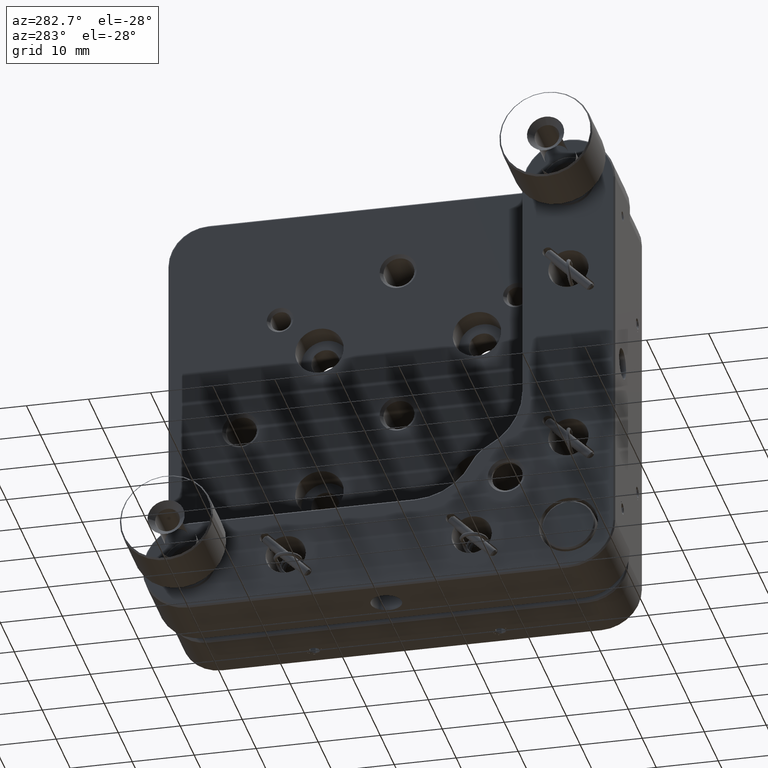
[diagram: clean part render]
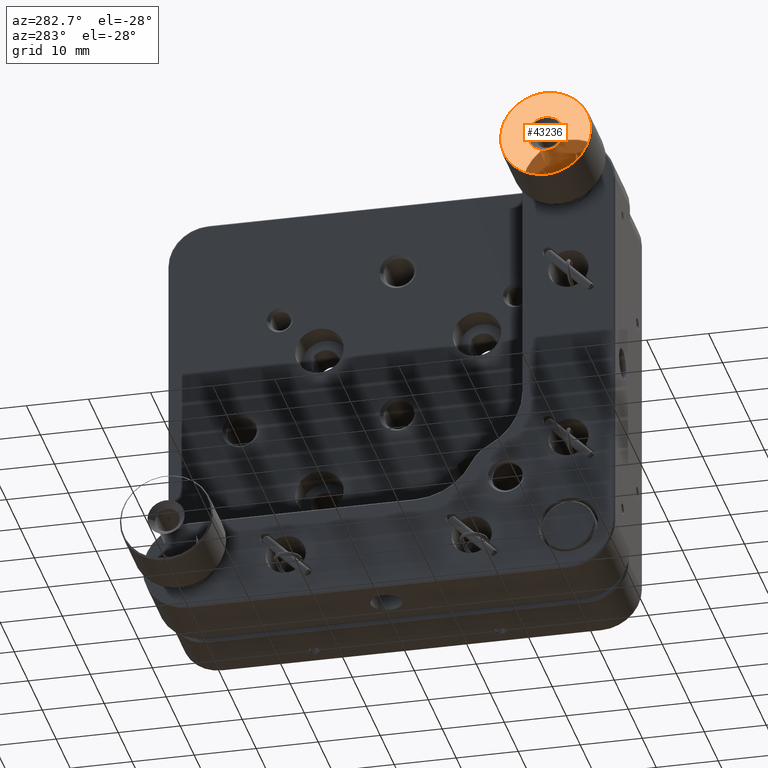
[diagram: same view with one face highlighted and labeled with its STEP entity id]
A machine part, auxiliary view. The second image highlights one B-rep face of the part: STEP entity #43236.
In plain terms, the highlighted planar face has unit normal (1, 0, 0).
Its self-contained STEP definition (entity closure, byte-faithful):
#512 = VERTEX_POINT ( 'NONE', #29912 ) ;
#1336 = CARTESIAN_POINT ( 'NONE',  ( -21.84398623751535595, -30.34372109025958508, 27.59012938477051691 ) ) ;
#1418 = CARTESIAN_POINT ( 'NONE',  ( -21.84398623751536306, -29.93838100432584781, 37.83237644105475539 ) ) ;
#1438 = CARTESIAN_POINT ( 'NONE',  ( -21.84398623751535240, -37.58592424781772934, 28.60257963041360085 ) ) ;
#1894 = CARTESIAN_POINT ( 'NONE',  ( -21.84398623751535595, -26.40816276198221857, 24.66398942666310745 ) ) ;
#2167 = CARTESIAN_POINT ( 'NONE',  ( -21.84398623751535240, -30.69708928176665452, 27.60157146635682324 ) ) ;
#2220 = EDGE_CURVE ( 'NONE', #31906, #45050, #40178, .T. ) ;
#2469 = CARTESIAN_POINT ( 'NONE',  ( -21.84398623751535595, -32.50560077444282570, 28.24622461485889957 ) ) ;
#3121 = EDGE_CURVE ( 'NONE', #45050, #31906, #27599, .T. ) ;
#3389 = CARTESIAN_POINT ( 'NONE',  ( -21.84398623751535951, -33.07212250267745901, 28.85066206609213779 ) ) ;
#4093 = FACE_BOUND ( 'NONE', #43569, .T. ) ;
#4287 = CARTESIAN_POINT ( 'NONE',  ( -21.84398623751535240, -30.69708928176665452, 27.60157146635682324 ) ) ;
#4553 = CARTESIAN_POINT ( 'NONE',  ( -21.84398623751535240, -29.96346242767710066, 23.36358709933421096 ) ) ;
#4572 = CARTESIAN_POINT ( 'NONE',  ( -21.84398623751535951, -35.92310955397117311, 35.54747541571233427 ) ) ;
#4772 = ORIENTED_EDGE ( 'NONE', *, *, #6053, .T. ) ;
#5040 = CARTESIAN_POINT ( 'NONE',  ( -21.84398623751535240, -37.58499492677211862, 32.59516857003853829 ) ) ;
#5277 = CARTESIAN_POINT ( 'NONE',  ( -21.84398623751535240, -32.59516857003828250, 23.61500507322791975 ) ) ;
#6053 = EDGE_CURVE ( 'NONE', #512, #22647, #24700, .T. ) ;
#7153 = CARTESIAN_POINT ( 'NONE',  ( -21.84398623751535240, -27.68976058615467650, 29.77038780176005872 ) ) ;
#7387 = CARTESIAN_POINT ( 'NONE',  ( -21.84398623751535240, -28.24622461485865443, 28.69439922555720202 ) ) ;
#7873 = CARTESIAN_POINT ( 'NONE',  ( -21.84398623751535240, -30.50291071823315292, 33.59842853364347803 ) ) ;
#7921 = PLANE ( 'NONE',  #34296 ) ;
#8158 = CARTESIAN_POINT ( 'NONE',  ( -21.84398623751535240, -35.16707050507975651, 24.94760334385239275 ) ) ;
#8409 = CARTESIAN_POINT ( 'NONE',  ( -21.84398623751535240, -37.26167789729522184, 27.69915989379381571 ) ) ;
#8855 = CARTESIAN_POINT ( 'NONE',  ( -21.84398623751534885, -23.33997186177837335, 30.79235413380149922 ) ) ;
#8876 = CARTESIAN_POINT ( 'NONE',  ( -21.84398623751535240, -36.23202250399559432, 26.00725236626903225 ) ) ;
#9097 = CARTESIAN_POINT ( 'NONE',  ( -21.84398623751535595, -24.66398942666288363, 34.79183723801782691 ) ) ;
#9115 = CARTESIAN_POINT ( 'NONE',  ( -21.84398623751535240, -37.05085331561930673, 27.25422468519450803 ) ) ;
#9888 = CARTESIAN_POINT ( 'NONE',  ( -21.84398623751535595, -33.51023941384513449, 31.42961219824021057 ) ) ;
#10118 = CARTESIAN_POINT ( 'NONE',  ( -21.84398623751536306, -31.23960434535577946, 33.55781272679148941 ) ) ;
#10977 = CARTESIAN_POINT ( 'NONE',  ( -21.84398623751535595, -27.59012938477025401, 30.85627890974044618 ) ) ;
#11729 = CARTESIAN_POINT ( 'NONE',  ( -21.84398623751535595, -27.25422468519425223, 24.14914668438073164 ) ) ;
#11748 = CARTESIAN_POINT ( 'NONE',  ( -21.84398623751534529, -32.13911394382525089, 37.69943519005752108 ) ) ;
#12466 = CARTESIAN_POINT ( 'NONE',  ( -21.84398623751535951, -37.78007543063875318, 31.70334426188728472 ) ) ;
#12681 = CARTESIAN_POINT ( 'NONE',  ( -21.84398623751535595, -30.40764586619852494, 23.33997186177862204 ) ) ;
#12699 = CARTESIAN_POINT ( 'NONE',  ( -21.84398623751535951, -37.44207287148852714, 33.04517168115624770 ) ) ;
#13483 = CARTESIAN_POINT ( 'NONE',  ( -21.84398623751535240, -31.98726205842042347, 33.28947091946251646 ) ) ;
#13899 = EDGE_LOOP ( 'NONE', ( #4772, #19096 ) ) ;
#14403 = CARTESIAN_POINT ( 'NONE',  ( -21.84398623751535951, -31.05045747327373107, 27.61301354794312246 ) ) ;
#14863 = DIRECTION ( 'NONE',  ( 0.000000000000000000, 1.000000000000000000, 4.655967891785675197E-16 ) ) ;
#15348 = CARTESIAN_POINT ( 'NONE',  ( -21.84398623751535240, -31.23653757232269612, 37.83641290066606189 ) ) ;
#15583 = CARTESIAN_POINT ( 'NONE',  ( -21.84398623751535240, -30.79235413380125408, 37.86002813822165791 ) ) ;
#15823 = CARTESIAN_POINT ( 'NONE',  ( -21.84398623751535240, -33.04517168115599901, 23.75792712851150412 ) ) ;
#15864 = CARTESIAN_POINT ( 'NONE',  ( -21.84398623751535240, -30.36536756906355095, 37.84620228963820665 ) ) ;
#16042 = CARTESIAN_POINT ( 'NONE',  ( -21.84398623751535240, -30.36536756906355095, 37.84620228963820665 ) ) ;
#16061 = CARTESIAN_POINT ( 'NONE',  ( -21.84398623751535240, -36.53601057333692381, 26.40816276198247081 ) ) ;
#17083 = CARTESIAN_POINT ( 'NONE',  ( -21.84398623751535595, -33.55781272679124072, 29.96039565464426602 ) ) ;
#17941 = CARTESIAN_POINT ( 'NONE',  ( -21.84398623751534529, -29.04165588108243057, 33.19409202851459639 ) ) ;
#18409 = CARTESIAN_POINT ( 'NONE',  ( -21.84398623751535240, -29.77038780175983135, 33.51023941384536187 ) ) ;
#19096 = ORIENTED_EDGE ( 'NONE', *, *, #19841, .T. ) ;
#19169 = CARTESIAN_POINT ( 'NONE',  ( -21.84398623751534885, -23.36762355894525811, 29.93838100432606808 ) ) ;
#19187 = CARTESIAN_POINT ( 'NONE',  ( -21.84398623751535240, -37.83641290066581320, 29.96346242767736712 ) ) ;
#19406 = CARTESIAN_POINT ( 'NONE',  ( -21.84398623751535240, -29.06088605617453524, 23.50056480994275176 ) ) ;
#19424 = CARTESIAN_POINT ( 'NONE',  ( -21.84398623751535240, -37.06006144754719855, 33.92572275197476017 ) ) ;
#19640 = CARTESIAN_POINT ( 'NONE',  ( -21.84398623751534885, -26.84391278633625788, 36.82089461413347919 ) ) ;
#19841 = EDGE_CURVE ( 'NONE', #22647, #512, #28860, .T. ) ;
#19877 = CARTESIAN_POINT ( 'NONE',  ( -21.84398623751534885, -23.50056480994250663, 32.13911394382548536 ) ) ;
#19895 = CARTESIAN_POINT ( 'NONE',  ( -21.84398623751535595, -31.26161899567394542, 23.36762355894551391 ) ) ;
#20112 = CARTESIAN_POINT ( 'NONE',  ( -21.84398623751535951, -24.96797749600420602, 35.19274763373126547 ) ) ;
#20908 = CARTESIAN_POINT ( 'NONE',  ( -21.84398623751535240, -31.42961219823996899, 27.68976058615492875 ) ) ;
#21371 = CARTESIAN_POINT ( 'NONE',  ( -21.84398623751535240, -30.69708928176665452, 27.60157146635682324 ) ) ;
#21601 = CARTESIAN_POINT ( 'NONE',  ( -21.84398623751535951, -32.95377538514116367, 32.50560077444308860 ) ) ;
#22306 = FACE_OUTER_BOUND ( 'NONE', #13899, .T. ) ;
#22499 = CARTESIAN_POINT ( 'NONE',  ( -21.84398623751535951, -28.00590797148543132, 29.04165588108267926 ) ) ;
#22647 = VERTEX_POINT ( 'NONE', #15864 ) ;
#22770 = CARTESIAN_POINT ( 'NONE',  ( -21.84398623751535595, -23.61407575218206034, 32.59742036958668621 ) ) ;
#23013 = CARTESIAN_POINT ( 'NONE',  ( -21.84398623751535595, -23.61500507322766396, 28.60483142996175943 ) ) ;
#23243 = CARTESIAN_POINT ( 'NONE',  ( -21.84398623751535240, -23.93832210270454652, 33.50084010620648201 ) ) ;
#23261 = CARTESIAN_POINT ( 'NONE',  ( -21.84398623751535240, -36.25239665614764561, 35.16707050508001231 ) ) ;
#23481 = CARTESIAN_POINT ( 'NONE',  ( -21.84398623751535951, -28.60483142996152139, 37.58499492677236731 ) ) ;
#23724 = CARTESIAN_POINT ( 'NONE',  ( -21.84398623751535240, -30.83463243093623873, 23.35379771036205909 ) ) ;
#24101 = CARTESIAN_POINT ( 'NONE',  ( -21.84398623751535240, -30.50291071823315292, 33.59842853364347803 ) ) ;
#24700 = B_SPLINE_CURVE_WITH_KNOTS ( 'NONE', 3,
 ( #23724, #12681, #4553, #19406, #34730, #45490, #11729, #1894, #26863, #29982, #45021, #41666, #26385, #45253, #23013, #41905, #19169, #8855, #34033, #19877, #22770, #23243, #26628, #9097, #20112, #30226, #27094, #19640, #34265, #38314, #23481, #44546, #1418, #16042 ),
 .UNSPECIFIED., .F., .F.,
 ( 4, 2, 2, 2, 2, 2, 2, 2, 2, 2, 2, 2, 2, 2, 2, 2, 4 ),
 ( -22.77654658574434521, -21.35301242413531853, -19.92947826252629184, -18.50594410091726871, -17.08240993930824203, -15.65887577769921535, -14.23534161609018867, -12.81180745448116376, -11.38827329287213708, -9.964739131263110394, -8.541204969654096146, -7.117670808045080122, -5.694136646436064098, -4.270602484827048073, -2.847068323218032049, -1.423534161609016024, 0.000000000000000000 ),
 .UNSPECIFIED. ) ;
#24755 = CARTESIAN_POINT ( 'NONE',  ( -21.84398623751535240, -33.19409202851437612, 32.15834411891761135 ) ) ;
#25222 = CARTESIAN_POINT ( 'NONE',  ( -21.84398623751534885, -32.15834411891736977, 28.00590797148568711 ) ) ;
#25398 = CARTESIAN_POINT ( 'NONE',  ( -21.84398623751535240, -29.21273794157939818, 27.91052908053775994 ) ) ;
#25631 = CARTESIAN_POINT ( 'NONE',  ( -21.84398623751535240, -30.14954252672607282, 33.58698645205717526 ) ) ;
#25678 = CARTESIAN_POINT ( 'NONE',  ( -21.84398623751535240, -38.23045141498581501, 22.96954858501421270 ) ) ;
#26385 = CARTESIAN_POINT ( 'NONE',  ( -21.84398623751535595, -24.13993855245259823, 27.27427724802552333 ) ) ;
#26405 = CARTESIAN_POINT ( 'NONE',  ( -21.84398623751535595, -32.59742036958645173, 37.58592424781798513 ) ) ;
#26628 = CARTESIAN_POINT ( 'NONE',  ( -21.84398623751535951, -24.14914668438050072, 33.94577531480579324 ) ) ;
#26646 = CARTESIAN_POINT ( 'NONE',  ( -21.84398623751535951, -31.70334426188703247, 23.41992456936130296 ) ) ;
#26863 = CARTESIAN_POINT ( 'NONE',  ( -21.84398623751535951, -26.00725236626878711, 24.96797749600444050 ) ) ;
#26882 = CARTESIAN_POINT ( 'NONE',  ( -21.84398623751535240, -35.54747541571207847, 25.27689044602887236 ) ) ;
#27094 = CARTESIAN_POINT ( 'NONE',  ( -21.84398623751535595, -26.03292949492004382, 36.25239665614789430 ) ) ;
#27344 = CARTESIAN_POINT ( 'NONE',  ( -21.84398623751535951, -33.50084010620623332, 37.26167789729547053 ) ) ;
#27599 = B_SPLINE_CURVE_WITH_KNOTS ( 'NONE', 3,
 ( #7873, #25631, #18409, #17941, #33047, #29711, #47174, #33288, #10977, #30610, #7153, #22499, #7387, #37106, #25398, #40197, #1336, #4287 ),
 .UNSPECIFIED., .F., .F.,
 ( 4, 2, 2, 2, 2, 2, 2, 2, 4 ),
 ( -9.424777960769656460, -8.246680715673448958, -7.068583470577242345, -5.890486225481035731, -4.712388980384828230, -3.534291735288620728, -2.356194490192414115, -1.178097245096207502, 0.000000000000000000 ),
 .UNSPECIFIED. ) ;
#28592 = CARTESIAN_POINT ( 'NONE',  ( -21.84398623751535240, -33.60987061522953212, 30.34372109025981956 ) ) ;
#28860 = B_SPLINE_CURVE_WITH_KNOTS ( 'NONE', 3,
 ( #33820, #15583, #15348, #11748, #26405, #27344, #41924, #45272, #37392, #4572, #23261, #34284, #19424, #12699, #5040, #12466, #34053, #40974, #19187, #30712, #1438, #8409, #9115, #16061, #8876, #26882, #8158, #44804, #37628, #15823, #5277, #26646, #19895, #45510 ),
 .UNSPECIFIED., .F., .F.,
 ( 4, 2, 2, 2, 2, 2, 2, 2, 2, 2, 2, 2, 2, 2, 2, 2, 4 ),
 ( 0.000000000000000000, 1.423534161609021576, 2.847068323218043151, 4.270602484827064949, 5.694136646436086302, 7.117670808045107655, 8.541204969654129897, 9.964739131263151251, 11.38827329287217260, 12.81180745448119396, 14.23534161609021531, 15.65887577769923666, 17.08240993930825979, 18.50594410091727937, 19.92947826252630250, 21.35301242413532208, 22.77654658574434521 ),
 .UNSPECIFIED. ) ;
#29056 = CARTESIAN_POINT ( 'NONE',  ( -21.84398623751535595, -30.85627890974023302, 33.60987061522978081 ) ) ;
#29711 = CARTESIAN_POINT ( 'NONE',  ( -21.84398623751535951, -28.12787749732233067, 32.34933793390815993 ) ) ;
#29912 = CARTESIAN_POINT ( 'NONE',  ( -21.84398623751535240, -30.83463243093623873, 23.35379771036205909 ) ) ;
#29982 = CARTESIAN_POINT ( 'NONE',  ( -21.84398623751534885, -25.27689044602862367, 25.65252458428794569 ) ) ;
#30226 = CARTESIAN_POINT ( 'NONE',  ( -21.84398623751535595, -25.65252458428772186, 35.92310955397143601 ) ) ;
#30610 = CARTESIAN_POINT ( 'NONE',  ( -21.84398623751535951, -27.61301354794286311, 30.14954252672630375 ) ) ;
#30712 = CARTESIAN_POINT ( 'NONE',  ( -21.84398623751535240, -37.69943519005727239, 29.06088605617479459 ) ) ;
#31906 = VERTEX_POINT ( 'NONE', #2167 ) ;
#32188 = CARTESIAN_POINT ( 'NONE',  ( -21.84398623751535595, -33.28947091946228198, 29.21273794157963266 ) ) ;
#33047 = CARTESIAN_POINT ( 'NONE',  ( -21.84398623751535595, -28.69439922555696398, 32.95377538514138394 ) ) ;
#33288 = CARTESIAN_POINT ( 'NONE',  ( -21.84398623751535951, -27.64218727320855251, 31.23960434535599973 ) ) ;
#33820 = CARTESIAN_POINT ( 'NONE',  ( -21.84398623751535240, -30.36536756906355095, 37.84620228963820665 ) ) ;
#34033 = CARTESIAN_POINT ( 'NONE',  ( -21.84398623751535240, -23.36358709933396582, 31.23653757232291994 ) ) ;
#34053 = CARTESIAN_POINT ( 'NONE',  ( -21.84398623751535240, -37.83237644105452091, 31.26161899567420832 ) ) ;
#34265 = CARTESIAN_POINT ( 'NONE',  ( -21.84398623751535240, -27.27427724802528886, 37.06006144754742593 ) ) ;
#34284 = CARTESIAN_POINT ( 'NONE',  ( -21.84398623751535951, -36.82089461413323761, 34.35608721366378404 ) ) ;
#34296 = AXIS2_PLACEMENT_3D ( 'NONE', #25678, #40489, #14863 ) ;
#34730 = CARTESIAN_POINT ( 'NONE',  ( -21.84398623751535595, -28.60257963041333440, 23.61407575218230193 ) ) ;
#37106 = CARTESIAN_POINT ( 'NONE',  ( -21.84398623751535951, -28.85066206609188555, 28.12787749732257936 ) ) ;
#37392 = CARTESIAN_POINT ( 'NONE',  ( -21.84398623751535595, -35.19274763373102388, 36.23202250399586433 ) ) ;
#37628 = CARTESIAN_POINT ( 'NONE',  ( -21.84398623751535240, -33.92572275197451148, 24.13993855245284692 ) ) ;
#38314 = CARTESIAN_POINT ( 'NONE',  ( -21.84398623751535595, -28.15482831884380488, 37.44207287148876873 ) ) ;
#39797 = CARTESIAN_POINT ( 'NONE',  ( -21.84398623751534529, -33.58698645205693367, 31.05045747327397621 ) ) ;
#40178 = B_SPLINE_CURVE_WITH_KNOTS ( 'NONE', 3,
 ( #21371, #14403, #20908, #25222, #2469, #3389, #32188, #17083, #28592, #39797, #9888, #24755, #21601, #46770, #13483, #10118, #29056, #43161 ),
 .UNSPECIFIED., .F., .F.,
 ( 4, 2, 2, 2, 2, 2, 2, 2, 4 ),
 ( -18.84955592153931292, -17.67145867644310542, -16.49336143134689792, -15.31526418625068686, -14.13716694115447936, -12.95906969605827186, -11.78097245096206258, -10.60287520586585330, -9.424777960769656460 ),
 .UNSPECIFIED. ) ;
#40197 = CARTESIAN_POINT ( 'NONE',  ( -21.84398623751535951, -29.96039565464403864, 27.64218727320881186 ) ) ;
#40489 = DIRECTION ( 'NONE',  ( 1.000000000000000000, 0.000000000000000000, -0.000000000000000000 ) ) ;
#40974 = CARTESIAN_POINT ( 'NONE',  ( -21.84398623751535240, -37.86002813822141633, 30.40764586619878074 ) ) ;
#41666 = CARTESIAN_POINT ( 'NONE',  ( -21.84398623751534885, -24.37910538586654496, 26.84391278633649236 ) ) ;
#41905 = CARTESIAN_POINT ( 'NONE',  ( -21.84398623751534885, -23.41992456936105071, 29.49665573811299524 ) ) ;
#41924 = CARTESIAN_POINT ( 'NONE',  ( -21.84398623751535595, -33.94577531480554455, 37.05085331561956252 ) ) ;
#42057 = ORIENTED_EDGE ( 'NONE', *, *, #2220, .T. ) ;
#43161 = CARTESIAN_POINT ( 'NONE',  ( -21.84398623751535240, -30.50291071823315292, 33.59842853364347803 ) ) ;
#43236 = ADVANCED_FACE ( 'NONE', ( #22306, #4093 ), #7921, .T. ) ;
#43569 = EDGE_LOOP ( 'NONE', ( #42057, #43631 ) ) ;
#43631 = ORIENTED_EDGE ( 'NONE', *, *, #3121, .T. ) ;
#44546 = CARTESIAN_POINT ( 'NONE',  ( -21.84398623751535595, -29.49665573811276786, 37.78007543063898765 ) ) ;
#44804 = CARTESIAN_POINT ( 'NONE',  ( -21.84398623751535240, -34.35608721366352825, 24.37910538586679365 ) ) ;
#45021 = CARTESIAN_POINT ( 'NONE',  ( -21.84398623751534885, -24.94760334385214406, 26.03292949492026764 ) ) ;
#45050 = VERTEX_POINT ( 'NONE', #24101 ) ;
#45253 = CARTESIAN_POINT ( 'NONE',  ( -21.84398623751534885, -23.75792712851125543, 28.15482831884402515 ) ) ;
#45272 = CARTESIAN_POINT ( 'NONE',  ( -21.84398623751535951, -34.79183723801756400, 36.53601057333717250 ) ) ;
#45490 = CARTESIAN_POINT ( 'NONE',  ( -21.84398623751536306, -27.69915989379355636, 23.93832210270479521 ) ) ;
#45510 = CARTESIAN_POINT ( 'NONE',  ( -21.84398623751535240, -30.83463243093623873, 23.35379771036205909 ) ) ;
#46770 = CARTESIAN_POINT ( 'NONE',  ( -21.84398623751535951, -32.34933793390793255, 33.07212250267770060 ) ) ;
#47174 = CARTESIAN_POINT ( 'NONE',  ( -21.84398623751535595, -27.91052908053750770, 31.98726205842064729 ) ) ;